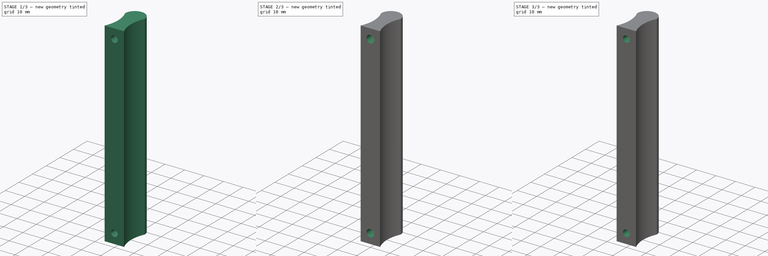
[diagram: build sequence overview — one tinted view per stage of 3, left to right]
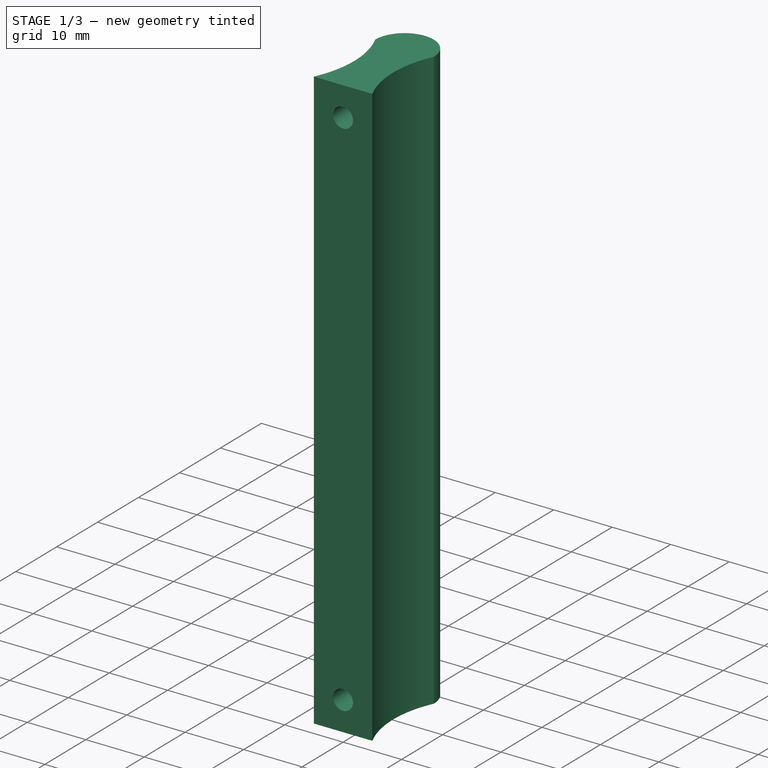
[diagram: stage 1 of 3 — iso view after this stage's code; geometry added in this stage tinted green]
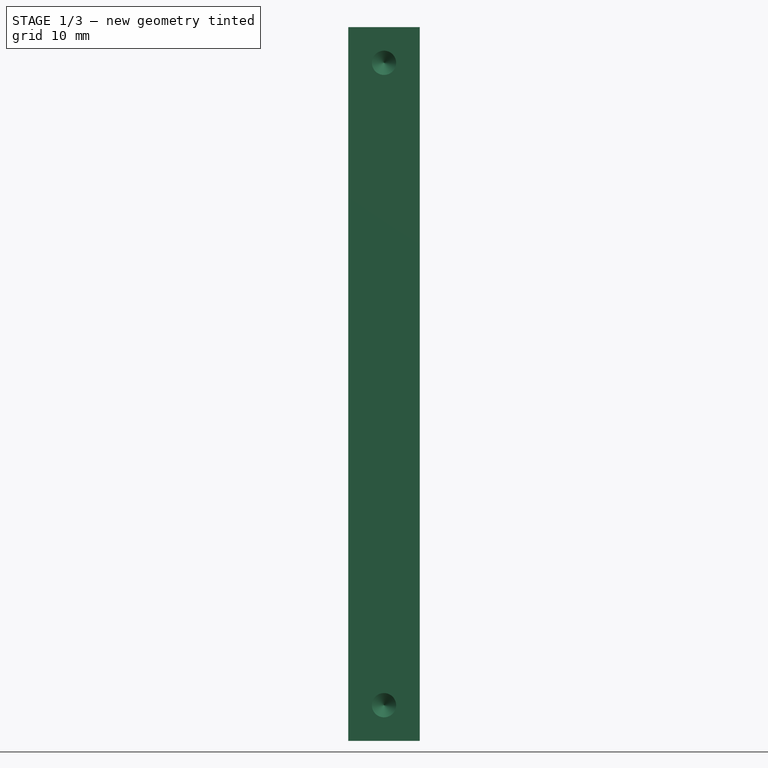
[diagram: stage 1 of 3 — front view after this stage's code; geometry added in this stage tinted green]
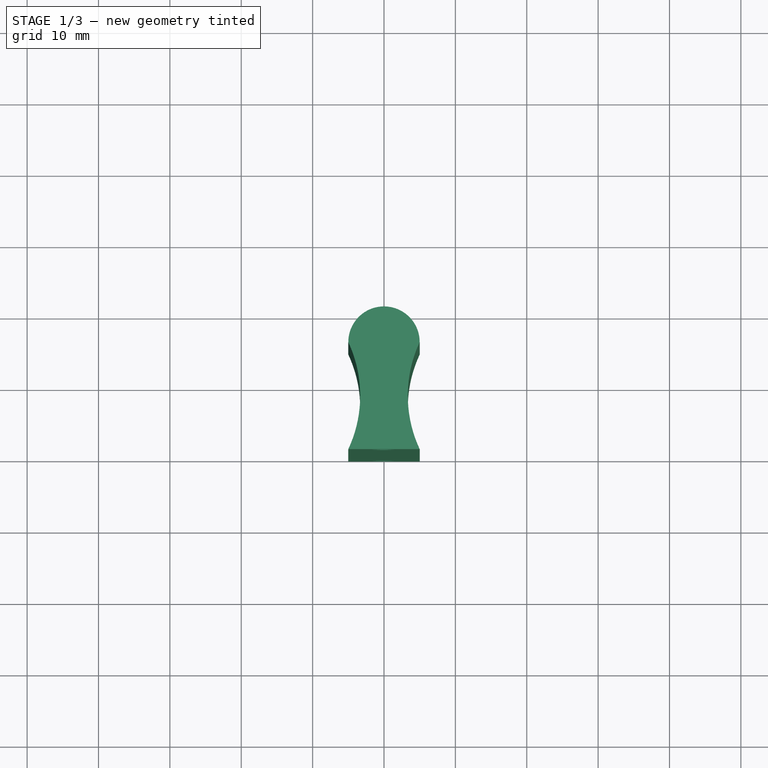
[diagram: stage 1 of 3 — top view after this stage's code; geometry added in this stage tinted green]
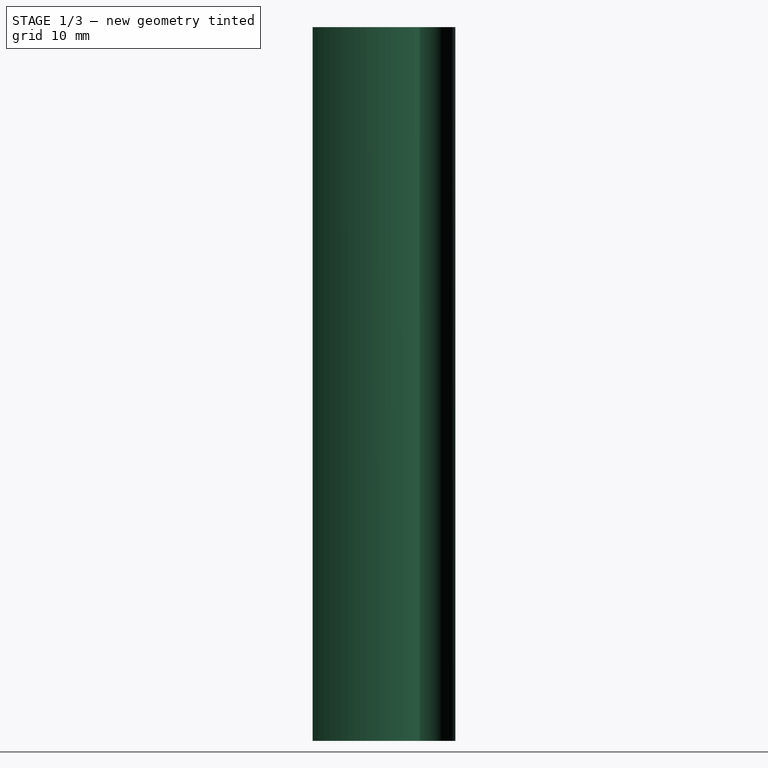
[diagram: stage 1 of 3 — right view after this stage's code; geometry added in this stage tinted green]
FCSTD DOCUMENT  (FreeCAD 0.21RUnknown)
Label: Handle
License: All rights reserved
LicenseURL: http://en.wikipedia.org/wiki/All_rights_reserved
objects: PartDesign::Body×4, Sketcher::SketchObject×3, PartDesign::FeatureBase×3, PartDesign::Hole×2, PartDesign::CoordinateSystem×2, PartDesign::SubShapeBinder×2, PartDesign::Pad×1, PartDesign::Mirrored×1, App::Link×1, PartDesign::Pocket×1
note: 23 computed .brp shape members not serialized (recipe doc carries the construction recipe); baked Part::Feature solids carry a one-line shape summary decoded from their .brp
EXTERNAL_REF file=Resources.FCStd obj=Spreadsheet

FEATURE [Sketcher::SketchObject] Sketch
  FullyConstrained = true
  MapMode = 5
  Support = -> [XY_Plane001]
  expr: Constraints[10] = <<Dimensions>>.handle_height * 0.75
  expr: Constraints[13] = <<Dimensions>>.handle_inner_width / 2
  expr: Constraints[7] = <<Dimensions>>.handle_height
  expr: Constraints[9] = <<Dimensions>>.handle_outer_width / 2
  sketch-geometry (5):
    g0: ArcOfCircle CenterX=-21.0417 CenterY=7.5 CenterZ=0 NormalX=0 NormalY=0 NormalZ=1 AngleXU=0 Radius=17.7083 StartAngle=5.84585 EndAngle=6.72052
    g1: ArcOfCircle CenterX=0 CenterY=15 CenterZ=0 NormalX=0 NormalY=0 NormalZ=1 AngleXU=0 Radius=5 StartAngle=1.5708 EndAngle=3.14159
    g2: LineSegment StartX=-5 StartY=8.35e-14 StartZ=0 EndX=0 EndY=0 EndZ=0
    g3: LineSegment StartX=0 StartY=0 StartZ=0 EndX=3e-16 EndY=20 EndZ=0
    g4: GeomPoint X=-3.33333 Y=7.5 Z=0
  constraints (15):
    c: Coincident(g1,g0)
    c: PointOnObject(g0,g-1)
    c: PointOnObject(g1,g-2)
    c: Coincident(g2,g0)
    c: Coincident(g2,g-1)
    c: Coincident(g3,g2)
    c: Coincident(g3,g1)
    c: DistanceY(g3,g3) = 20
    c: Vertical(g0,g0)
    c: DistanceX(g2,g2) = 5
    c: DistanceY(g0) = 15
    c: PointOnObject(g4,g0)
    c: Horizontal(g0,g4)
    c: DistanceX(g4,g2) = 3.33333
    c: PointOnObject(g1,g3)
FEATURE [PartDesign::Pad] Pad
  Direction = (0,0,1)
  Length = 100
  Length2 = 10
  Midplane = true
  Profile = -> Sketch
  ReferenceAxis = -> Sketch [N_Axis]
  Type = 0
  expr: Length = <<Dimensions>>.handle_length
FEATURE [PartDesign::Mirrored] Mirrored
  BaseFeature = -> Pad
  MirrorPlane = -> Sketch [V_Axis]
  Originals = -> [Pad]
  Refine = true
FEATURE [Sketcher::SketchObject] Sketch001
  FullyConstrained = true
  MapMode = 5
  Placement = pos=(0,0,0) rot=(1,0,0;1.5708rad)
  Support = -> [XZ_Plane001]
  expr: Constraints[2] = <<Dimensions>>.handle_connector_screw_diameter
  expr: Constraints[4] = <<Dimensions>>.handle_length - <<Dimensions>>.handle_outer_width
  sketch-geometry (2):
    g0: Circle CenterX=0 CenterY=45 CenterZ=0 NormalX=0 NormalY=0 NormalZ=1 AngleXU=0 Radius=1.5
    g1: Circle CenterX=0 CenterY=-45 CenterZ=0 NormalX=0 NormalY=0 NormalZ=1 AngleXU=0 Radius=1.5
  constraints (5):
    c: PointOnObject(g0,g-2)
    c: Equal(g0,g1)
    c: Diameter(g0) = 3
    c: Symmetric(g0,g1,g-1)
    c: Distance(g0,g1) = 90
FEATURE [PartDesign::Hole] Hole
  BaseFeature = -> Mirrored
  CustomThreadClearance = 0
  Depth = 10
  DepthType = 0
  Diameter = 3.4
  DrillForDepth = false
  DrillPoint = 1
  DrillPointAngle = 118
  HoleCutCountersinkAngle = 90
  HoleCutCustomValues = false
  HoleCutDepth = 0
  HoleCutDiameter = 6.1
  HoleCutType = 0
  ModelThread = false
  Profile = -> Sketch001
  Tapered = false
  TaperedAngle = 90
  ThreadClass = 0
  ThreadDepth = 10
  ThreadDepthType = 0
  ThreadDirection = 0
  ThreadFit = 0
  ThreadSize = 9
  ThreadType = 1
  Threaded = false
  UseCustomThreadClearance = false
  expr: Depth = <<Dimensions>>.handle_screw_hole_depth
  expr: ThreadSize = <<Dimensions>>.handle_screw_type
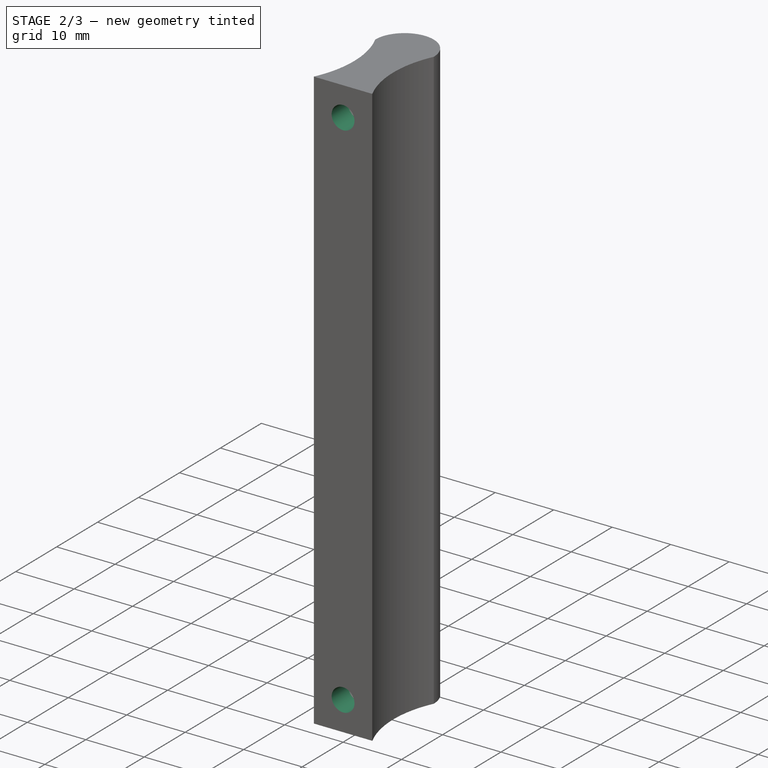
[diagram: stage 2 of 3 — iso view after this stage's code; geometry added in this stage tinted green]
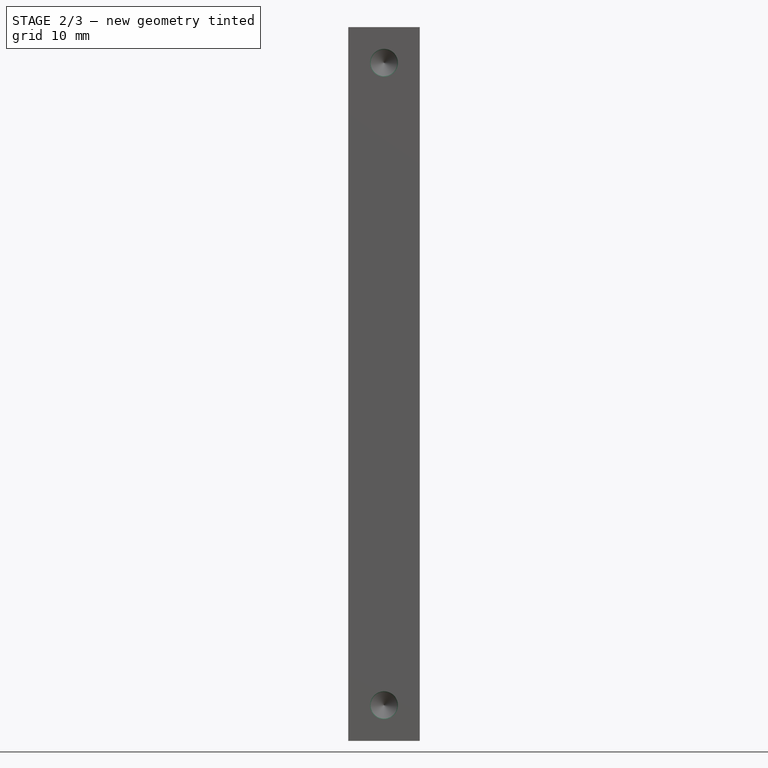
[diagram: stage 2 of 3 — front view after this stage's code; geometry added in this stage tinted green]
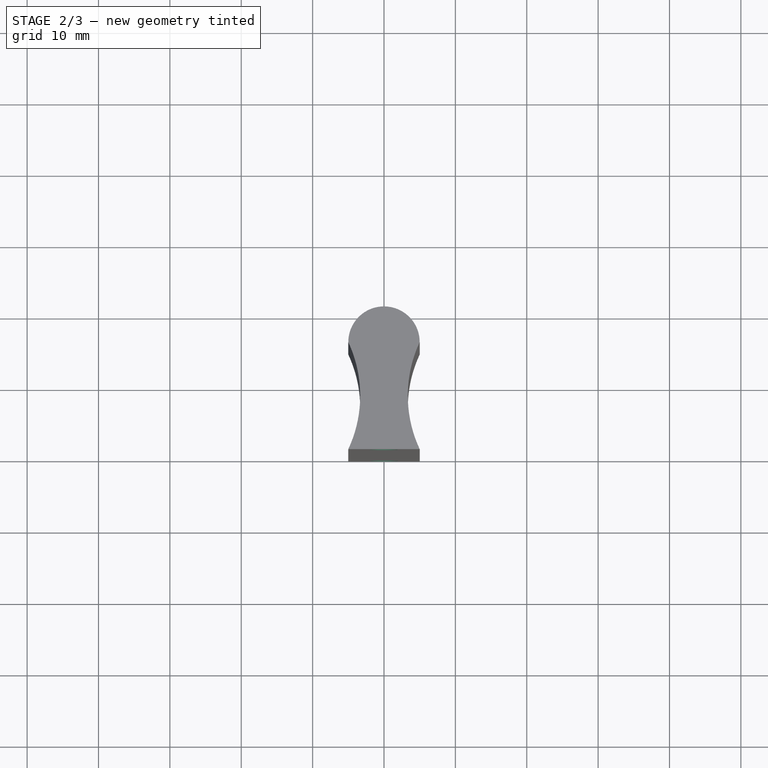
[diagram: stage 2 of 3 — top view after this stage's code; geometry added in this stage tinted green]
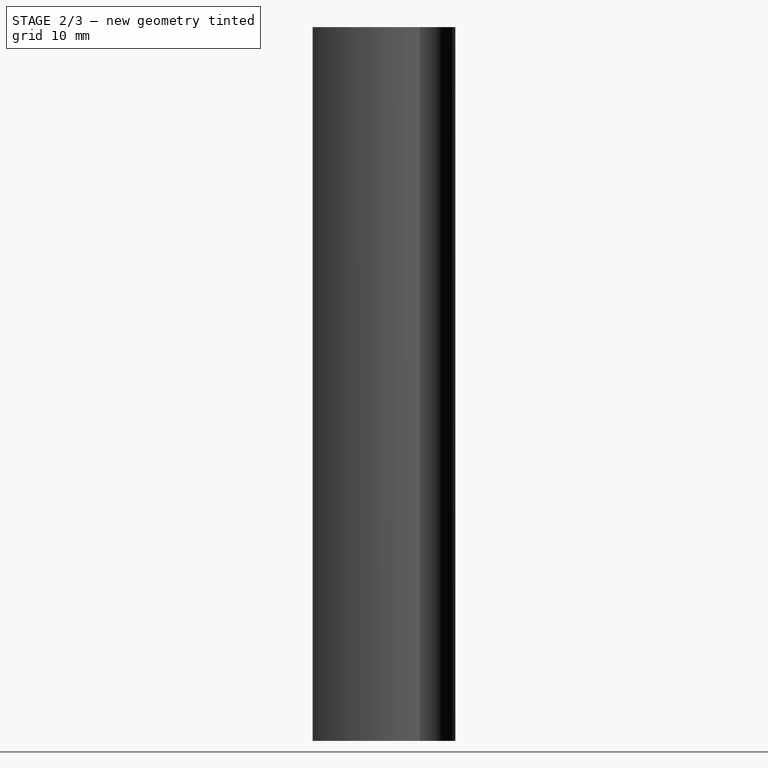
[diagram: stage 2 of 3 — right view after this stage's code; geometry added in this stage tinted green]
FEATURE [PartDesign::Body] Body001  label="Handle_EmbeddedNut"
  Group = -> [Clone,Sketch002,Binder,Pocket]
  Origin = -> Origin
  Tip = -> Pocket
FEATURE [PartDesign::CoordinateSystem] Local_CS  label="LCS_Origin001"
  AttacherType = Attacher::AttachEngine3D
  MapMode = 2
  Support = -> [X_Axis002]
FEATURE [PartDesign::FeatureBase] BaseFeature
  BaseFeature = -> Body
FEATURE [PartDesign::SubShapeBinder] Binder001
  BindCopyOnChange = 0
  BindMode = 0
  ClaimChildren = false
  Context = -> Body003 [Binder001.]
  Fuse = false
  MakeFace = true
  OffsetFill = false
  OffsetIntersection = false
  OffsetJoinType = 0
  OffsetOpenResult = false
  PartialLoad = false
  Relative = true
  Support = -> [Body[Hole.Sketch001.]]
  _Version = 2
FEATURE [PartDesign::Hole] Hole001
  BaseFeature = -> BaseFeature
  CustomThreadClearance = 0
  Depth = 4
  DepthType = 0
  Diameter = 3.9
  DrillForDepth = false
  DrillPoint = 1
  DrillPointAngle = 118
  HoleCutCountersinkAngle = 90
  HoleCutCustomValues = false
  HoleCutDepth = 0
  HoleCutDiameter = 6.1
  HoleCutType = 0
  ModelThread = false
  Profile = -> Binder001
  Reversed = true
  Tapered = false
  TaperedAngle = 90
  ThreadClass = 0
  ThreadDepth = 4
  ThreadDepthType = 0
  ThreadDirection = 0
  ThreadFit = 0
  ThreadSize = 0
  ThreadType = 0
  Threaded = false
  UseCustomThreadClearance = false
  expr: Depth = <<Dimensions>>.handle_ti_L
  expr: Diameter = <<Dimensions>>.handle_ti_D
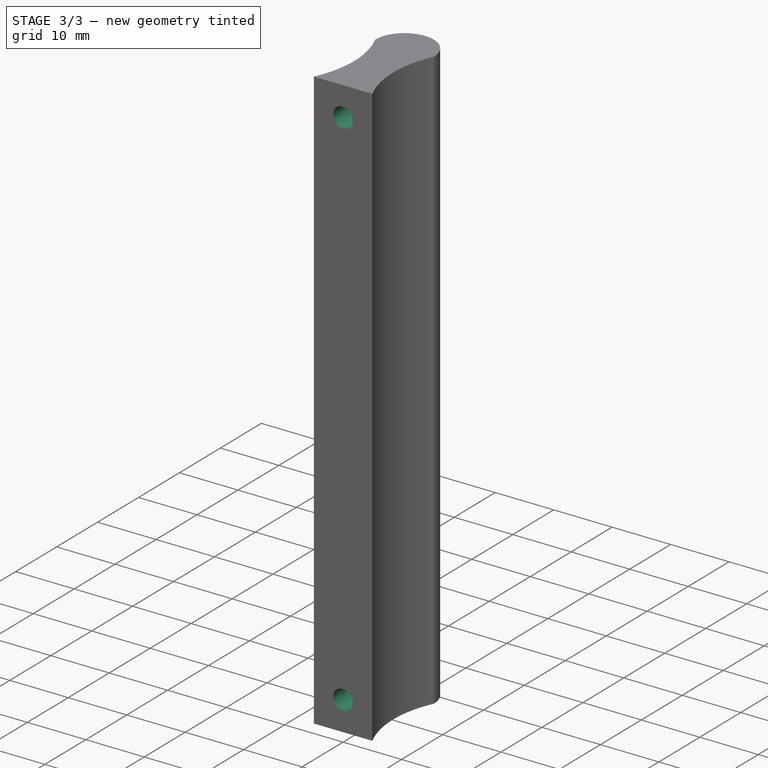
[diagram: stage 3 of 3 — iso view after this stage's code; geometry added in this stage tinted green]
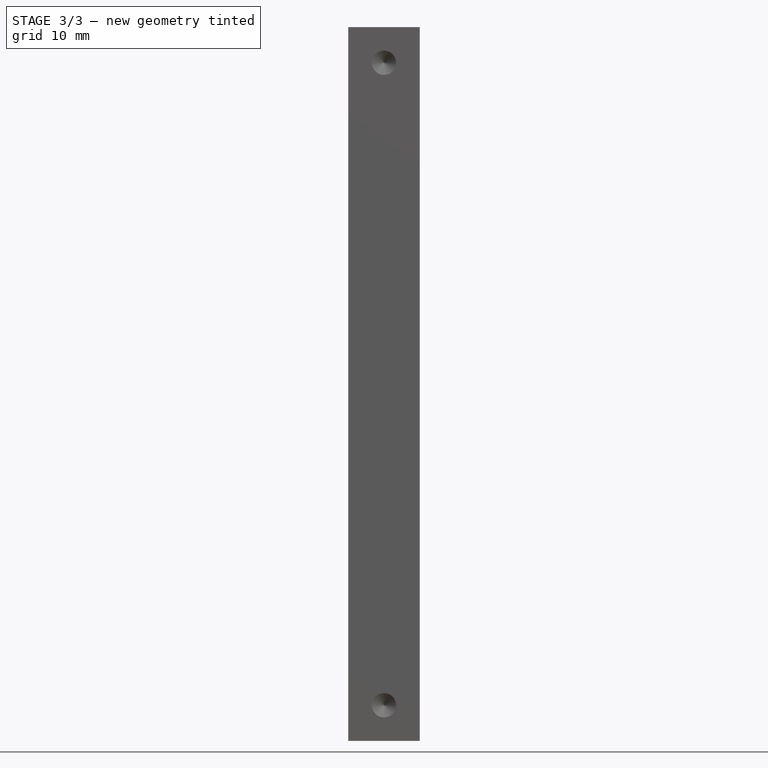
[diagram: stage 3 of 3 — front view after this stage's code; geometry added in this stage tinted green]
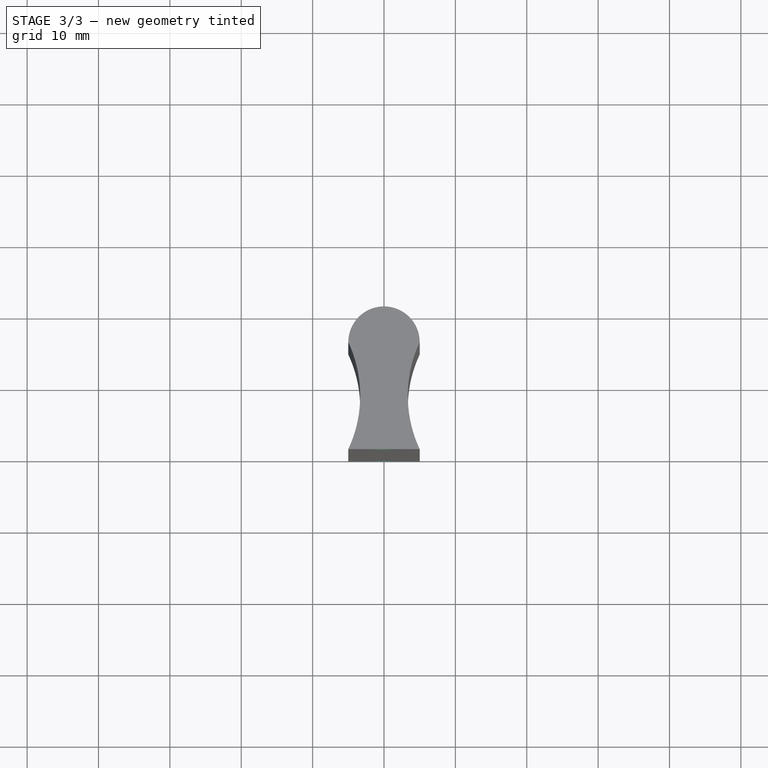
[diagram: stage 3 of 3 — top view after this stage's code; geometry added in this stage tinted green]
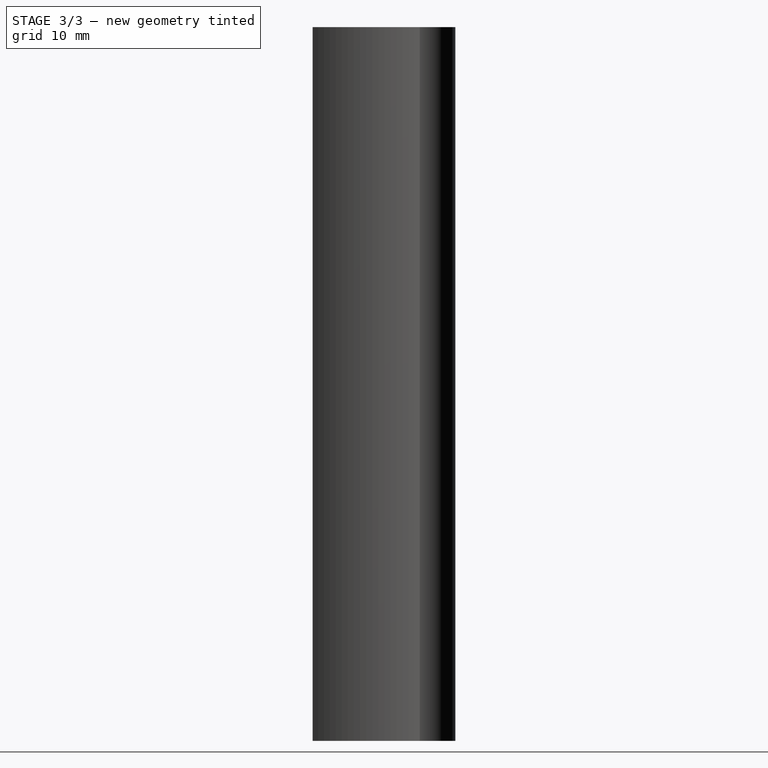
[diagram: stage 3 of 3 — right view after this stage's code; geometry added in this stage tinted green]
FEATURE [App::Link] Link  label="Dimensions"
  LinkedObject = -> <external Resources.FCStd>#Spreadsheet
FEATURE [PartDesign::CoordinateSystem] LCS_Origin
  AttacherType = Attacher::AttachEngine3D
  MapMode = 2
  Support = -> [X_Axis001]
FEATURE [PartDesign::Body] Body  label="Base"
  Group = -> [LCS_Origin,Sketch,Pad,Mirrored,Sketch001,Hole]
  Origin = -> Origin001
  Tip = -> Hole
FEATURE [PartDesign::FeatureBase] Clone
  BaseFeature = -> Body
FEATURE [PartDesign::SubShapeBinder] Binder
  BindCopyOnChange = 0
  BindMode = 0
  ClaimChildren = false
  Context = -> Body001 [Binder.]
  Fuse = false
  MakeFace = true
  OffsetFill = false
  OffsetIntersection = false
  OffsetJoinType = 0
  OffsetOpenResult = false
  PartialLoad = false
  Relative = true
  Support = -> [Body[Hole.Sketch001.]]
  _Version = 2
FEATURE [Sketcher::SketchObject] Sketch002
  AttachmentOffset = pos=(0,0,-4) rot=(0,0,1;0rad)
  ExternalGeometry = -> [Binder]
  FullyConstrained = true
  MapMode = 5
  Placement = pos=(0,4,9e-16) rot=(1,0,0;1.5708rad)
  Support = -> [XZ_Plane]
  expr: Constraints[38] = <<Dimensions>>.handle_nut_S + 2 * <<Dimensions>>.clearance_tight_fit
  sketch-geometry (14):
    g0: LineSegment StartX=0 StartY=48.4064 StartZ=0 EndX=-2.95 EndY=46.7032 EndZ=0
    g1: LineSegment StartX=-2.95 StartY=46.7032 StartZ=0 EndX=-2.95 EndY=43.2968 EndZ=0
    g2: LineSegment StartX=-2.95 StartY=43.2968 StartZ=0 EndX=4.6976e-12 EndY=41.5936 EndZ=0
    g3: LineSegment StartX=4.6976e-12 StartY=41.5936 StartZ=0 EndX=2.95 EndY=43.2968 EndZ=0
    g4: LineSegment StartX=2.95 StartY=43.2968 StartZ=0 EndX=2.95 EndY=46.7032 EndZ=0
    g5: LineSegment StartX=2.95 StartY=46.7032 StartZ=0 EndX=0 EndY=48.4064 EndZ=0
    g6: Circle CenterX=0 CenterY=45 CenterZ=0 NormalX=0 NormalY=0 NormalZ=1 AngleXU=0 Radius=3.40637
    g7: LineSegment StartX=-1.7164e-12 StartY=-48.4064 StartZ=0 EndX=2.95 EndY=-46.7032 EndZ=0
    g8: LineSegment StartX=2.95 StartY=-46.7032 StartZ=0 EndX=2.95 EndY=-43.2968 EndZ=0
    g9: LineSegment StartX=2.95 StartY=-43.2968 StartZ=0 EndX=0 EndY=-41.5936 EndZ=0
    g10: LineSegment StartX=0 StartY=-41.5936 StartZ=0 EndX=-2.95 EndY=-43.2968 EndZ=0
    g11: LineSegment StartX=-2.95 StartY=-43.2968 StartZ=0 EndX=-2.95 EndY=-46.7032 EndZ=0
    g12: LineSegment StartX=-2.95 StartY=-46.7032 StartZ=0 EndX=-1.7164e-12 EndY=-48.4064 EndZ=0
    g13: Circle CenterX=0 CenterY=-45 CenterZ=0 NormalX=0 NormalY=0 NormalZ=1 AngleXU=0 Radius=3.40637
  constraints (32):
    c: Coincident(g0,g1)
    c: Coincident(g1,g2)
    c: Coincident(g2,g3)
    c: Coincident(g3,g4)
    c: Coincident(g4,g5)
    c: Coincident(g5,g0)
    c: Equal(g0, g1-g5) x5
    c: PointOnObject(g0,g6)
    c: PointOnObject(g1,g6)
    c: PointOnObject(g2,g6)
    c: PointOnObject(g3,g6)
    c: PointOnObject(g4,g6)
    c: PointOnObject(g5,g6)
    c: Coincident(g6,g-3)
    c: PointOnObject(g5,g-2)
    c: Coincident(g7,g8)
    c: Coincident(g8,g9)
    c: Coincident(g9,g10)
    c: Coincident(g10,g11)
    c: Coincident(g11,g12)
    c: Coincident(g12,g7)
    c: Equal(g7, g8-g12) x5
    c: PointOnObject(g7,g13)
    c: PointOnObject(g8,g13)
    c: PointOnObject(g9,g13)
    c: PointOnObject(g10,g13)
    c: PointOnObject(g11,g13)
    c: PointOnObject(g12,g13)
    c: Coincident(g13,g-4)
    c: PointOnObject(g9,g-2)
    c: DistanceX(g10,g8) = 5.9
    c: Equal(g8,g4)
FEATURE [PartDesign::Pocket] Pocket
  BaseFeature = -> Clone
  Direction = (0,1,2e-16)
  Length = 2.8
  Length2 = 5
  Profile = -> Sketch002
  ReferenceAxis = -> Sketch002 [N_Axis]
  Type = 0
  expr: Length = <<Dimensions>>.handle_nut_M + 2 * <<Dimensions>>.clearance_tight_fit
FEATURE [PartDesign::Body] Body003  label="Handle_ThreadedInsert"
  BaseFeature = -> Body
  Group = -> [BaseFeature,Binder001,Hole001]
  Origin = -> Origin003
  Tip = -> Hole001
FEATURE [PartDesign::FeatureBase] BaseFeature001
  BaseFeature = -> Body003
FEATURE [PartDesign::Body] Body002  label="Handle"
  BaseFeature = -> Body003
  Group = -> [BaseFeature001,Local_CS]
  Origin = -> Origin002
  Tip = -> BaseFeature001
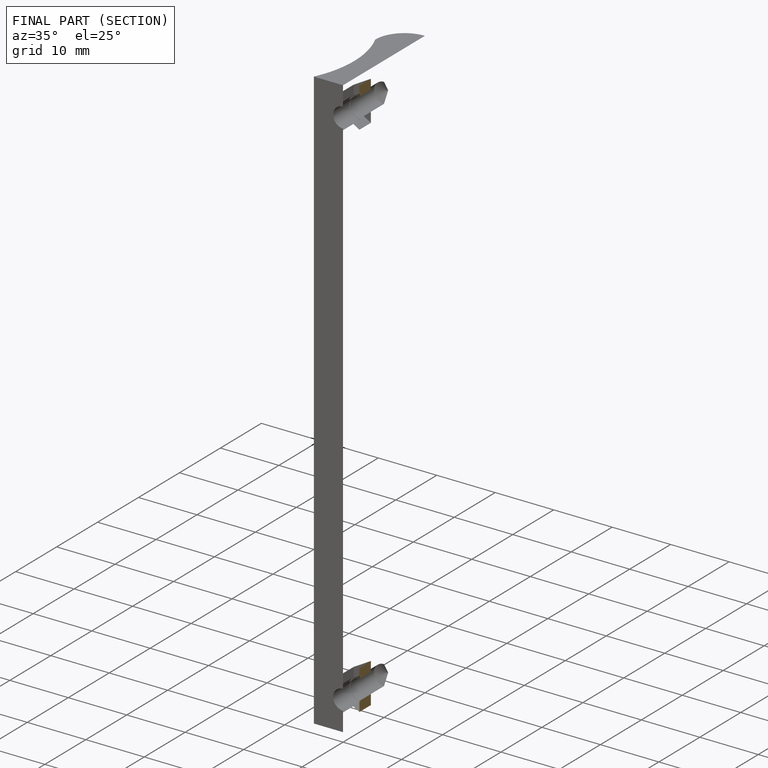
[diagram: finished part — half-section view (interior)]
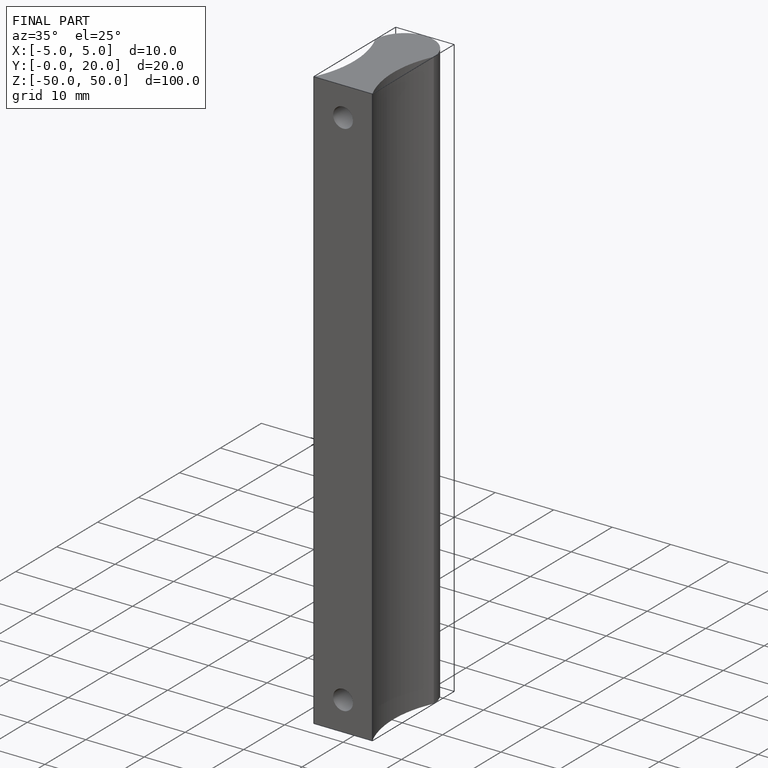
[diagram: finished part — iso view with bounding-box wireframe]
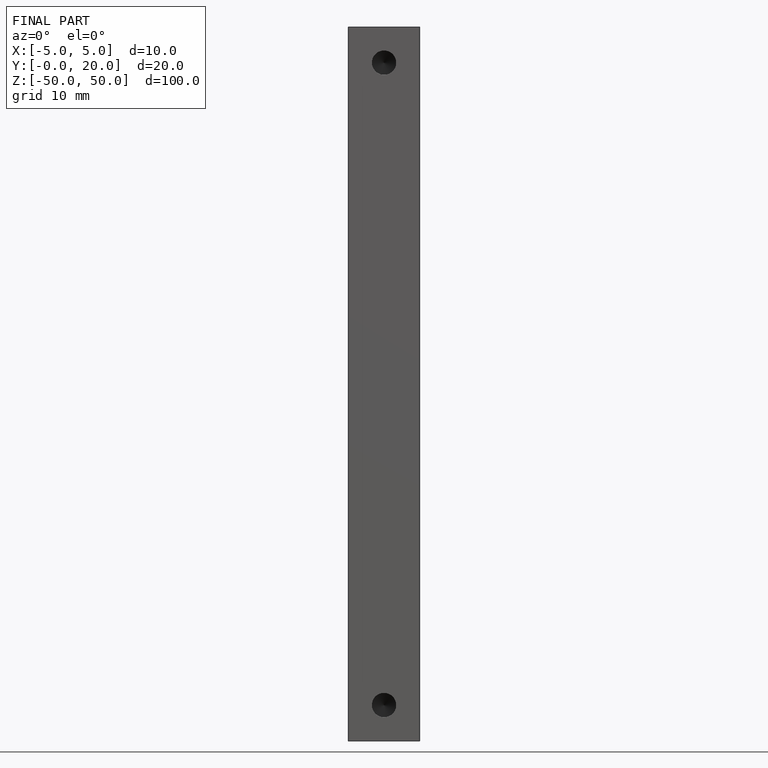
[diagram: finished part — front view with bounding-box wireframe]
